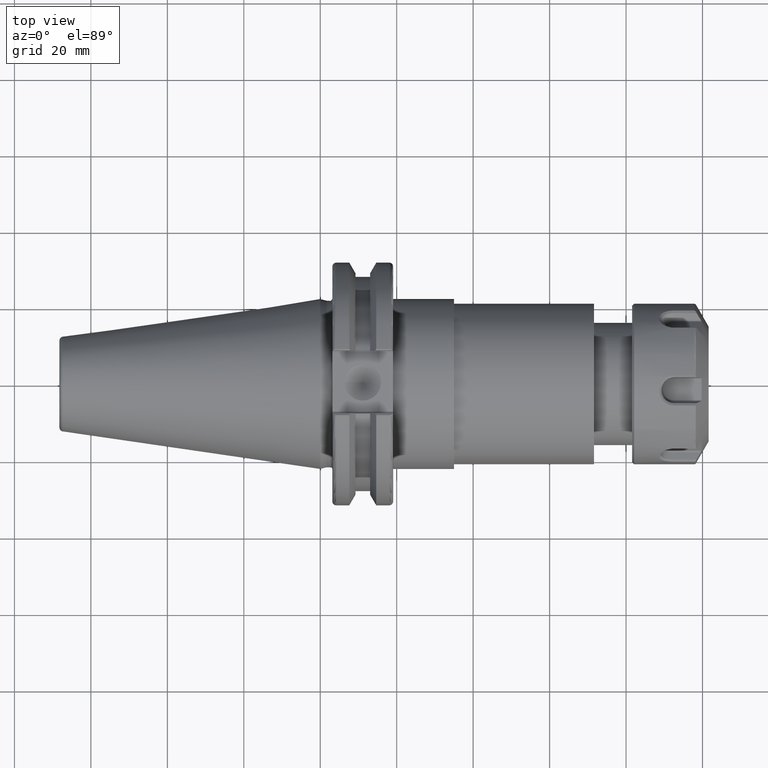
[diagram: clean part render]
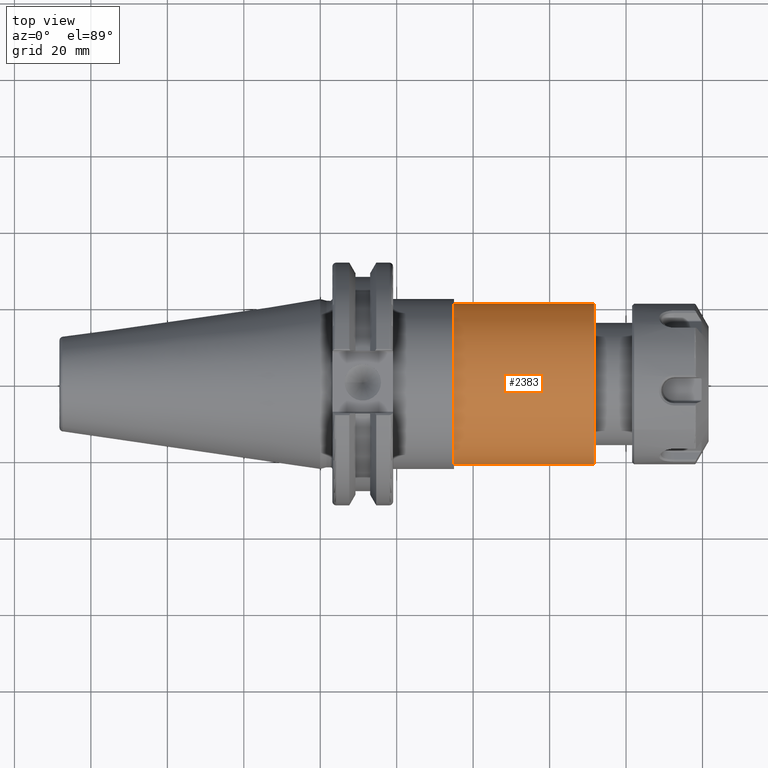
[diagram: same view with one face highlighted and labeled with its STEP entity id]
A machine part, top view. The second image highlights one B-rep face of the part: STEP entity #2383.
In plain terms, the highlighted cylindrical surface (bore or boss wall) has radius 21 mm, axis along (1, 0, 0).
Its self-contained STEP definition (entity closure, byte-faithful):
#303=CYLINDRICAL_SURFACE('',#2608,21.);
#338=FACE_OUTER_BOUND('',#482,.T.);
#482=EDGE_LOOP('',(#1666,#1667,#1668,#1669));
#638=LINE('',#3526,#802);
#802=VECTOR('',#2875,21.);
#969=CIRCLE('',#2607,21.);
#970=CIRCLE('',#2609,21.);
#1074=VERTEX_POINT('',#3521);
#1075=VERTEX_POINT('',#3524);
#1304=EDGE_CURVE('',#1074,#1074,#969,.T.);
#1305=EDGE_CURVE('',#1075,#1075,#970,.T.);
#1306=EDGE_CURVE('',#1075,#1074,#638,.T.);
#1666=ORIENTED_EDGE('',*,*,#1305,.F.);
#1667=ORIENTED_EDGE('',*,*,#1306,.T.);
#1668=ORIENTED_EDGE('',*,*,#1304,.T.);
#1669=ORIENTED_EDGE('',*,*,#1306,.F.);
#2383=ADVANCED_FACE('',(#338),#303,.T.);
#2607=AXIS2_PLACEMENT_3D('',#3522,#2869,#2870);
#2608=AXIS2_PLACEMENT_3D('',#3523,#2871,#2872);
#2609=AXIS2_PLACEMENT_3D('',#3525,#2873,#2874);
#2869=DIRECTION('center_axis',(1.,0.,0.));
#2870=DIRECTION('ref_axis',(0.,0.,-1.));
#2871=DIRECTION('center_axis',(1.,0.,0.));
#2872=DIRECTION('ref_axis',(0.,1.,0.));
#2873=DIRECTION('center_axis',(1.,0.,0.));
#2874=DIRECTION('ref_axis',(0.,0.,-1.));
#2875=DIRECTION('',(-1.,0.,0.));
#3521=CARTESIAN_POINT('',(35.,-21.,-2.57175827820944E-15));
#3522=CARTESIAN_POINT('Origin',(35.,0.,0.));
#3523=CARTESIAN_POINT('Origin',(53.3,0.,0.));
#3524=CARTESIAN_POINT('',(71.6,-21.,-2.57175827820944E-15));
#3525=CARTESIAN_POINT('Origin',(71.6,0.,0.));
#3526=CARTESIAN_POINT('',(53.3,-21.,-2.57175827820944E-15));